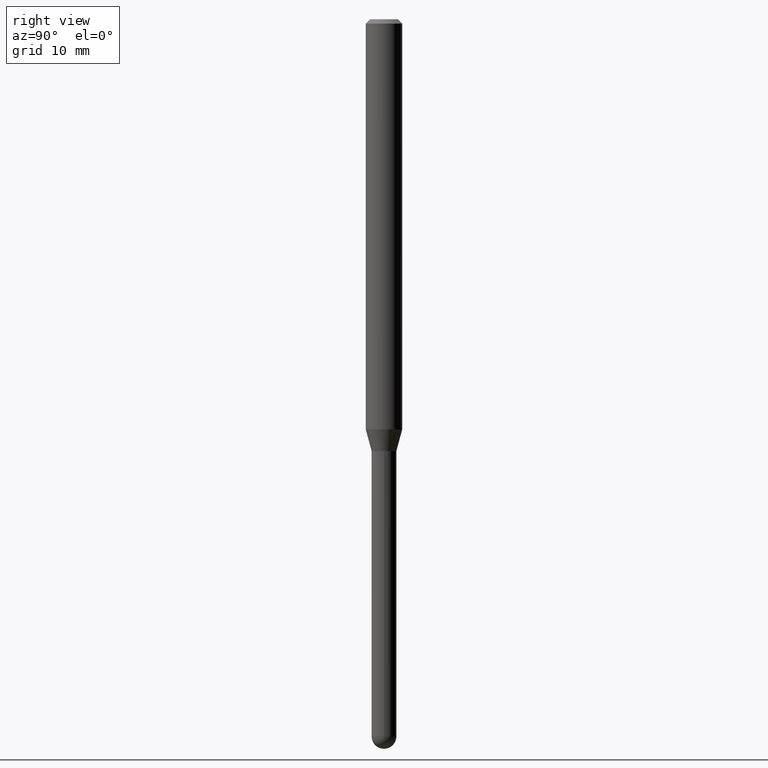
[diagram: clean part render]
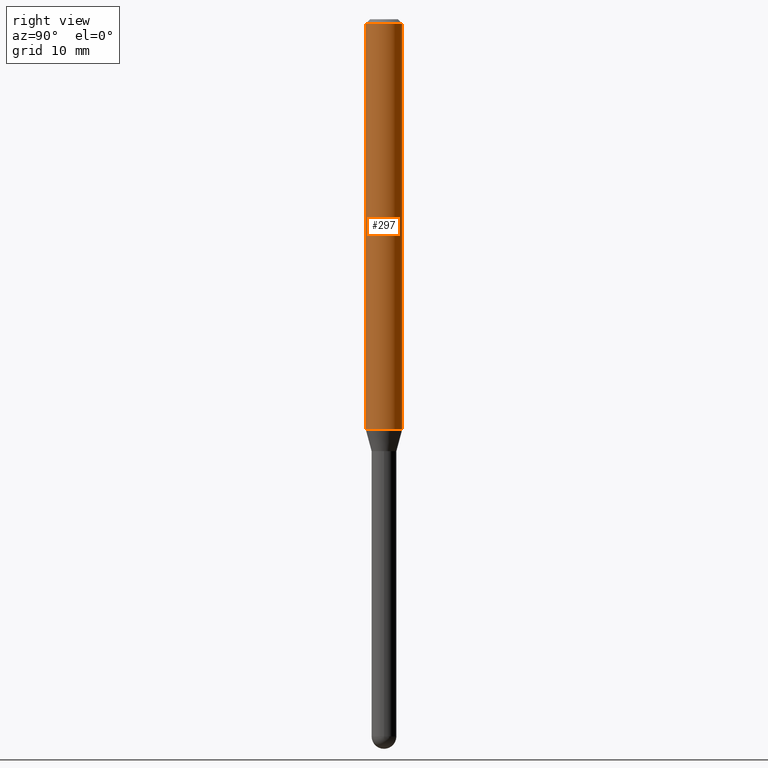
[diagram: same view with one face highlighted and labeled with its STEP entity id]
A machine part, right view. The second image highlights one B-rep face of the part: STEP entity #297.
In plain terms, the highlighted cylindrical surface (edge-blend (fillet) strip) has radius 1.5875 mm, axis along (-0, 0, 1).
Its self-contained STEP definition (entity closure, byte-faithful):
#5 = CARTESIAN_POINT ( 'NONE',  ( -4.364351673553912750E-16, -0.06250000000000005551, -0.01499999999999979128 ) ) ;
#10 = EDGE_CURVE ( 'NONE', #451, #46, #170, .T. ) ;
#17 = ORIENTED_EDGE ( 'NONE', *, *, #10, .T. ) ;
#40 = CIRCLE ( 'NONE', #196, 0.06250000000000000000 ) ;
#44 = DIRECTION ( 'NONE',  ( -2.445364733956634770E-29, 3.491630376197783750E-15, 1.000000000000000000 ) ) ;
#46 = VERTEX_POINT ( 'NONE', #110 ) ;
#82 = CARTESIAN_POINT ( 'NONE',  ( 0.000000000000000000, 0.000000000000000000, 0.000000000000000000 ) ) ;
#93 = CARTESIAN_POINT ( 'NONE',  ( -4.364351673553916201E-16, -0.06250000000000000000, 2.182268985123614597E-16 ) ) ;
#99 = DIRECTION ( 'NONE',  ( -2.445364733956634770E-29, 3.491630376197783750E-15, 1.000000000000000000 ) ) ;
#102 = LINE ( 'NONE', #93, #485 ) ;
#110 = CARTESIAN_POINT ( 'NONE',  ( 4.440892098500972274E-16, 0.06249999999999995143, -0.01500000000000022669 ) ) ;
#129 = EDGE_LOOP ( 'NONE', ( #488, #17, #381, #511 ) ) ;
#166 = DIRECTION ( 'NONE',  ( -2.445364733956634490E-29, 3.491630376197783355E-15, 1.000000000000000000 ) ) ;
#170 = LINE ( 'NONE', #292, #469 ) ;
#180 = VERTEX_POINT ( 'NONE', #251 ) ;
#183 = DIRECTION ( 'NONE',  ( -6.982962677686265922E-15, -1.000000000000000000, 3.483106191921935554E-15 ) ) ;
#189 = VERTEX_POINT ( 'NONE', #5 ) ;
#196 = AXIS2_PLACEMENT_3D ( 'NONE', #337, #484, #252 ) ;
#251 = CARTESIAN_POINT ( 'NONE',  ( -4.364351673553569595E-16, -0.06250000000000487110, -1.405358983848625565 ) ) ;
#252 = DIRECTION ( 'NONE',  ( -6.982962677686265922E-15, -1.000000000000000000, 4.370956789862821150E-15 ) ) ;
#258 = DIRECTION ( 'NONE',  ( -2.445364733956634490E-29, 3.491630376197783355E-15, 1.000000000000000000 ) ) ;
#264 = AXIS2_PLACEMENT_3D ( 'NONE', #408, #99, #183 ) ;
#291 = CIRCLE ( 'NONE', #264, 0.06250000000000000000 ) ;
#292 = CARTESIAN_POINT ( 'NONE',  ( 4.440892098500625669E-16, 0.06250000000000000000, -2.182268985123614597E-16 ) ) ;
#295 = CYLINDRICAL_SURFACE ( 'NONE', #414, 0.06250000000000000000 ) ;
#297 = ADVANCED_FACE ( 'NONE', ( #435 ), #295, .T. ) ;
#324 = EDGE_CURVE ( 'NONE', #180, #189, #102, .T. ) ;
#337 = CARTESIAN_POINT ( 'NONE',  ( 3.436615297652560978E-29, -4.906994117468312380E-15, -1.405358983848625787 ) ) ;
#366 = EDGE_CURVE ( 'NONE', #189, #46, #291, .T. ) ;
#381 = ORIENTED_EDGE ( 'NONE', *, *, #366, .F. ) ;
#399 = EDGE_CURVE ( 'NONE', #180, #451, #40, .T. ) ;
#408 = CARTESIAN_POINT ( 'NONE',  ( 3.668047100934954362E-31, -5.237445564296678780E-17, -0.01500000000000000812 ) ) ;
#414 = AXIS2_PLACEMENT_3D ( 'NONE', #82, #44, #438 ) ;
#417 = CARTESIAN_POINT ( 'NONE',  ( 4.440892098500971288E-16, 0.06249999999999512196, -1.405358983848626009 ) ) ;
#435 = FACE_OUTER_BOUND ( 'NONE', #129, .T. ) ;
#438 = DIRECTION ( 'NONE',  ( -6.982962677686265922E-15, -1.000000000000000000, 3.491630376197783355E-15 ) ) ;
#451 = VERTEX_POINT ( 'NONE', #417 ) ;
#469 = VECTOR ( 'NONE', #166, 39.37007874015748143 ) ;
#484 = DIRECTION ( 'NONE',  ( -2.445364733956634770E-29, 3.491630376197783750E-15, 1.000000000000000000 ) ) ;
#485 = VECTOR ( 'NONE', #258, 39.37007874015748143 ) ;
#488 = ORIENTED_EDGE ( 'NONE', *, *, #399, .T. ) ;
#511 = ORIENTED_EDGE ( 'NONE', *, *, #324, .F. ) ;